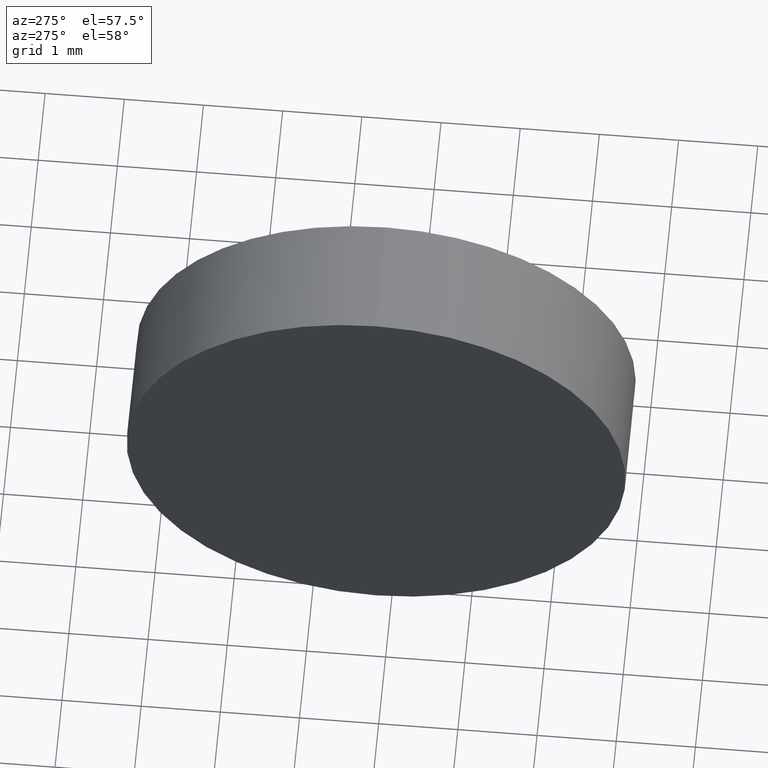
[diagram: clean part render]
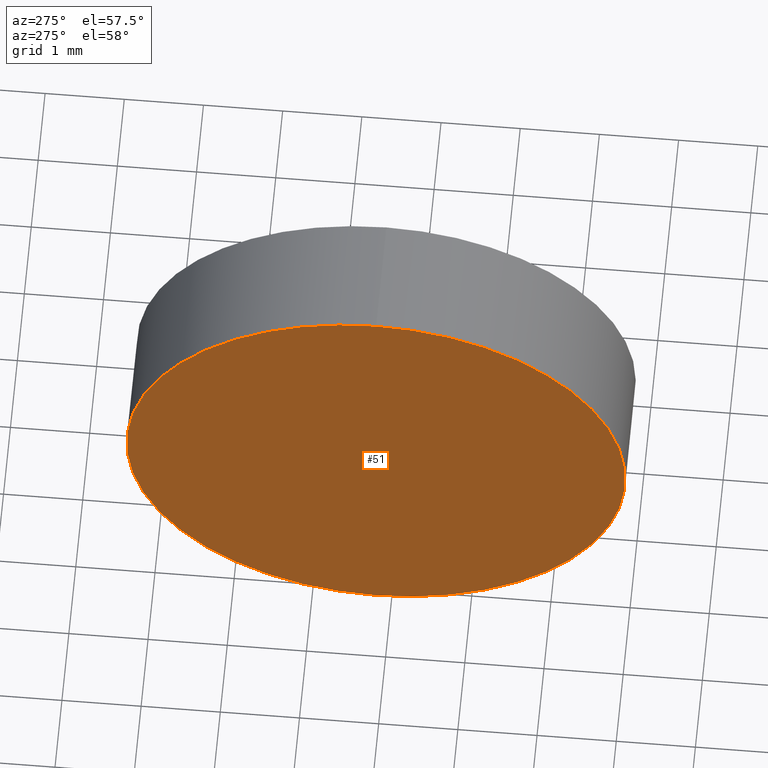
[diagram: same view with one face highlighted and labeled with its STEP entity id]
A machine part, auxiliary view. The second image highlights one B-rep face of the part: STEP entity #51.
In plain terms, the highlighted planar face has unit normal (1, 0, 0).
Its self-contained STEP definition (entity closure, byte-faithful):
#12 = CARTESIAN_POINT ( 'NONE',  ( 452.8172646101707000, 11.19250467615683000, 0.0000000000000000000 ) ) ;
#22 = ORIENTED_EDGE ( 'NONE', *, *, #126, .T. ) ;
#32 = DIRECTION ( 'NONE',  ( -1.000000000000000000, -0.0000000000000000000, -0.0000000000000000000 ) ) ;
#40 = AXIS2_PLACEMENT_3D ( 'NONE', #50, #32, #173 ) ;
#43 = CARTESIAN_POINT ( 'NONE',  ( 452.8172646101707000, 11.19250467615683000, -3.150000000000003500 ) ) ;
#50 = CARTESIAN_POINT ( 'NONE',  ( 452.8172646101707000, 11.19250467615683000, 0.0000000000000000000 ) ) ;
#51 = ADVANCED_FACE ( 'NONE', ( #55 ), #129, .F. ) ;
#55 = FACE_OUTER_BOUND ( 'NONE', #128, .T. ) ;
#58 = VERTEX_POINT ( 'NONE', #103 ) ;
#63 = CIRCLE ( 'NONE', #125, 3.150000000000003500 ) ;
#86 = DIRECTION ( 'NONE',  ( 0.0000000000000000000, 0.0000000000000000000, -1.000000000000000000 ) ) ;
#91 = EDGE_CURVE ( 'NONE', #58, #124, #63, .T. ) ;
#103 = CARTESIAN_POINT ( 'NONE',  ( 452.8172646101707000, 11.19250467615683000, 3.150000000000003500 ) ) ;
#108 = CIRCLE ( 'NONE', #40, 3.150000000000003500 ) ;
#124 = VERTEX_POINT ( 'NONE', #43 ) ;
#125 = AXIS2_PLACEMENT_3D ( 'NONE', #172, #135, #162 ) ;
#126 = EDGE_CURVE ( 'NONE', #124, #58, #108, .T. ) ;
#128 = EDGE_LOOP ( 'NONE', ( #156, #22 ) ) ;
#129 = PLANE ( 'NONE',  #136 ) ;
#135 = DIRECTION ( 'NONE',  ( -1.000000000000000000, -0.0000000000000000000, -0.0000000000000000000 ) ) ;
#136 = AXIS2_PLACEMENT_3D ( 'NONE', #12, #185, #86 ) ;
#156 = ORIENTED_EDGE ( 'NONE', *, *, #91, .T. ) ;
#162 = DIRECTION ( 'NONE',  ( 0.0000000000000000000, 0.0000000000000000000, 1.000000000000000000 ) ) ;
#172 = CARTESIAN_POINT ( 'NONE',  ( 452.8172646101707000, 11.19250467615683000, 0.0000000000000000000 ) ) ;
#173 = DIRECTION ( 'NONE',  ( 0.0000000000000000000, 0.0000000000000000000, 1.000000000000000000 ) ) ;
#185 = DIRECTION ( 'NONE',  ( 1.000000000000000000, 0.0000000000000000000, 0.0000000000000000000 ) ) ;